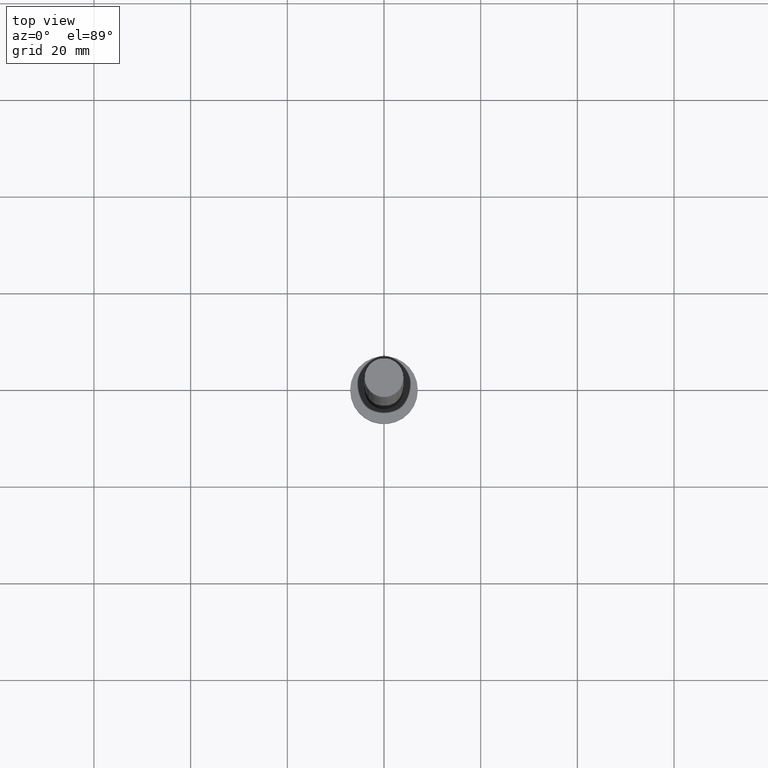
[diagram: clean part render]
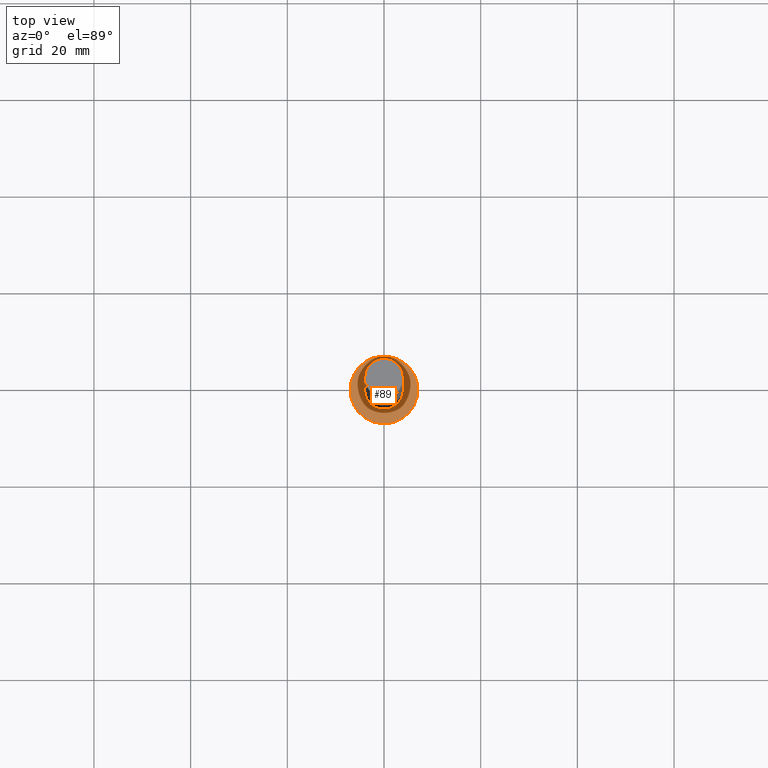
[diagram: same view with one face highlighted and labeled with its STEP entity id]
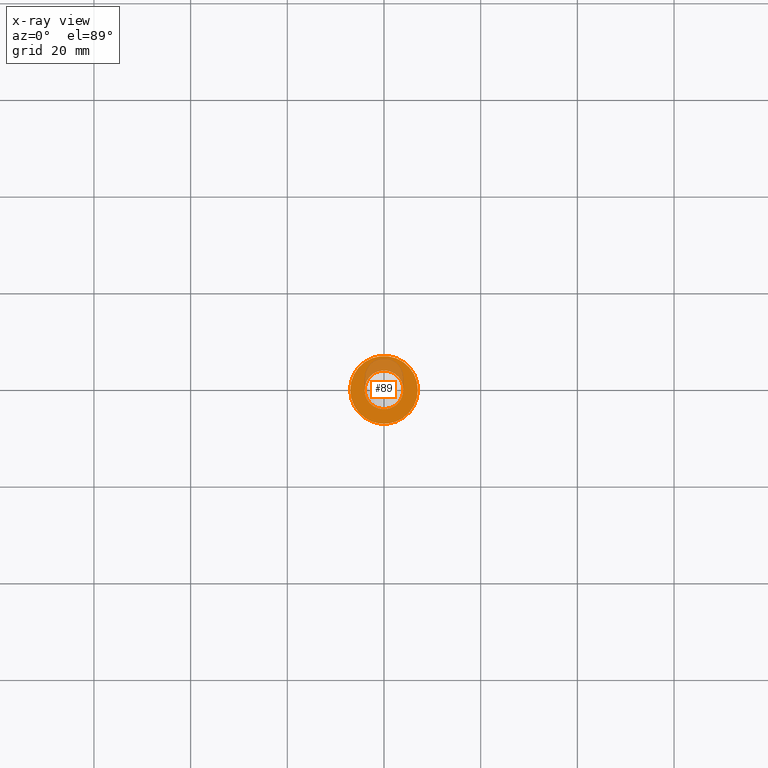
[diagram: x-ray of the same camera — body ghosted, the highlighted face saturated]
A machine part, top view. The second image highlights one B-rep face of the part: STEP entity #89.
The next image is the same camera in x-ray: the body ghosted, the highlighted face saturated — about 20% of this face is hidden behind the body in this view.
In plain terms, the highlighted planar face has unit normal (0, 0, 1).
Its self-contained STEP definition (entity closure, byte-faithful):
#33 = CARTESIAN_POINT ( 'NONE',  ( 0.000000000000000000, 0.000000000000000000, 5.000000000000000000 ) ) ;
#43 = ORIENTED_EDGE ( 'NONE', *, *, #203, .T. ) ;
#49 = CARTESIAN_POINT ( 'NONE',  ( 0.000000000000000000, 0.000000000000000000, 5.000000000000000000 ) ) ;
#89 = ADVANCED_FACE ( 'NONE', ( #961, #271 ), #320, .T. ) ;
#103 = DIRECTION ( 'NONE',  ( 1.000000000000000000, 0.000000000000000000, 0.000000000000000000 ) ) ;
#195 = DIRECTION ( 'NONE',  ( 0.000000000000000000, 0.000000000000000000, 1.000000000000000000 ) ) ;
#203 = EDGE_CURVE ( 'NONE', #959, #1012, #557, .T. ) ;
#234 = DIRECTION ( 'NONE',  ( 0.000000000000000000, 0.000000000000000000, 1.000000000000000000 ) ) ;
#262 = DIRECTION ( 'NONE',  ( 1.000000000000000000, 0.000000000000000000, 0.000000000000000000 ) ) ;
#271 = FACE_OUTER_BOUND ( 'NONE', #323, .T. ) ;
#278 = CARTESIAN_POINT ( 'NONE',  ( 7.000000000000000000, 8.572527594031473190E-16, 5.000000000000000000 ) ) ;
#298 = VERTEX_POINT ( 'NONE', #638 ) ;
#302 = DIRECTION ( 'NONE',  ( 0.000000000000000000, 0.000000000000000000, 1.000000000000000000 ) ) ;
#318 = ORIENTED_EDGE ( 'NONE', *, *, #1392, .T. ) ;
#320 = PLANE ( 'NONE',  #719 ) ;
#323 = EDGE_LOOP ( 'NONE', ( #43, #318 ) ) ;
#451 = DIRECTION ( 'NONE',  ( 1.000000000000000000, 0.000000000000000000, 0.000000000000000000 ) ) ;
#505 = AXIS2_PLACEMENT_3D ( 'NONE', #49, #195, #451 ) ;
#557 = CIRCLE ( 'NONE', #940, 7.000000000000000000 ) ;
#638 = CARTESIAN_POINT ( 'NONE',  ( 4.000000000000000000, 4.898587196589412829E-16, 5.000000000000000000 ) ) ;
#719 = AXIS2_PLACEMENT_3D ( 'NONE', #832, #1054, #1290 ) ;
#722 = CIRCLE ( 'NONE', #1389, 4.000000000000000000 ) ;
#799 = VERTEX_POINT ( 'NONE', #1288 ) ;
#832 = CARTESIAN_POINT ( 'NONE',  ( 0.000000000000000000, 0.000000000000000000, 5.000000000000000000 ) ) ;
#854 = CIRCLE ( 'NONE', #505, 4.000000000000000000 ) ;
#871 = EDGE_CURVE ( 'NONE', #799, #298, #854, .T. ) ;
#888 = CIRCLE ( 'NONE', #1554, 7.000000000000000000 ) ;
#912 = CARTESIAN_POINT ( 'NONE',  ( 0.000000000000000000, 0.000000000000000000, 5.000000000000000000 ) ) ;
#940 = AXIS2_PLACEMENT_3D ( 'NONE', #1414, #234, #103 ) ;
#959 = VERTEX_POINT ( 'NONE', #1452 ) ;
#961 = FACE_BOUND ( 'NONE', #1375, .T. ) ;
#1012 = VERTEX_POINT ( 'NONE', #278 ) ;
#1054 = DIRECTION ( 'NONE',  ( 0.000000000000000000, 0.000000000000000000, 1.000000000000000000 ) ) ;
#1208 = DIRECTION ( 'NONE',  ( 1.000000000000000000, 0.000000000000000000, 0.000000000000000000 ) ) ;
#1227 = EDGE_CURVE ( 'NONE', #298, #799, #722, .T. ) ;
#1288 = CARTESIAN_POINT ( 'NONE',  ( -4.000000000000000000, 0.000000000000000000, 5.000000000000000000 ) ) ;
#1290 = DIRECTION ( 'NONE',  ( 1.000000000000000000, 0.000000000000000000, -0.000000000000000000 ) ) ;
#1330 = ORIENTED_EDGE ( 'NONE', *, *, #1227, .F. ) ;
#1375 = EDGE_LOOP ( 'NONE', ( #1439, #1330 ) ) ;
#1389 = AXIS2_PLACEMENT_3D ( 'NONE', #912, #1544, #262 ) ;
#1392 = EDGE_CURVE ( 'NONE', #1012, #959, #888, .T. ) ;
#1414 = CARTESIAN_POINT ( 'NONE',  ( 0.000000000000000000, 0.000000000000000000, 5.000000000000000000 ) ) ;
#1439 = ORIENTED_EDGE ( 'NONE', *, *, #871, .F. ) ;
#1452 = CARTESIAN_POINT ( 'NONE',  ( -7.000000000000000000, 0.000000000000000000, 5.000000000000000000 ) ) ;
#1544 = DIRECTION ( 'NONE',  ( 0.000000000000000000, 0.000000000000000000, 1.000000000000000000 ) ) ;
#1554 = AXIS2_PLACEMENT_3D ( 'NONE', #33, #302, #1208 ) ;